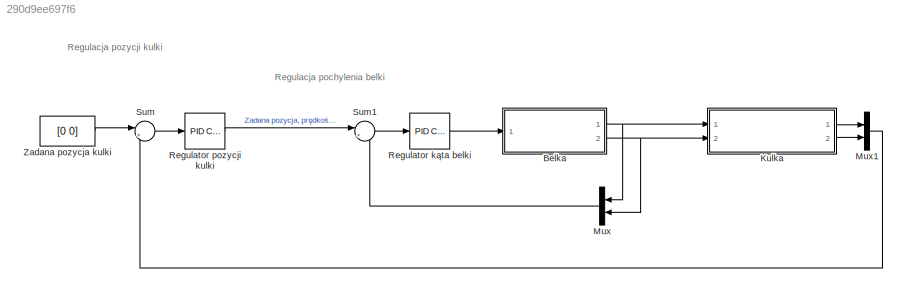
MODEL slx_290d9ee697f6
KIND model
CONFIG AbsTol = auto
CONFIG EnableMultiTasking = off
CONFIG FixedStep = auto
CONFIG MaxStep = auto
CONFIG MinStep = auto
CONFIG RelTol = 1e-3
CONFIG SampleTimeConstraint = Unconstrained
CONFIG Solver = VariableStepAuto
CONFIG SolverName = VariableStepAuto
CONFIG StartTime = 0.0
CONFIG StopTime = 10.0
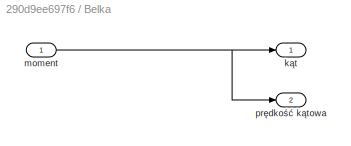
BLOCK [SubSystem] Belka
  Ports = [1, 2]
  RequestExecContextInheritance = off
  Variant = off
BLOCK [Outport] Belka/kąt
  IconDisplay = Port number
BLOCK [Inport] Belka/moment
  IconDisplay = Port number
BLOCK [Outport] Belka/prędkość kątowa
  IconDisplay = Port number
  Port = 2
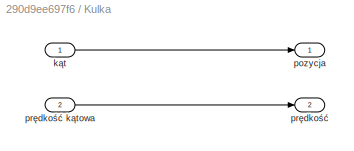
BLOCK [SubSystem] Kulka
  Ports = [2, 2]
  RequestExecContextInheritance = off
  Variant = off
BLOCK [Inport] Kulka/kąt
  IconDisplay = Port number
BLOCK [Outport] Kulka/pozycja
  IconDisplay = Port number
BLOCK [Outport] Kulka/prędkość
  IconDisplay = Port number
  Port = 2
BLOCK [Inport] Kulka/prędkość kątowa
  IconDisplay = Port number
  Port = 2
BLOCK [Mux] Mux
  DisplayOption = bar
  Inputs = 2
  Ports = [2, 1]
BLOCK [Mux] Mux1
  DisplayOption = bar
  Inputs = 2
  Ports = [2, 1]
BLOCK [Reference] Regulator kąta belki  REF=simulink/Continuous/PID Controller
  Ports = [1, 1]
  SourceBlock = simulink/Continuous/PID Controller
  SourceType = PID 1dof
BLOCK [Reference] Regulator pozycji kulki  REF=simulink/Continuous/PID Controller
  Ports = [1, 1]
  SourceBlock = simulink/Continuous/PID Controller
  SourceType = PID 1dof
BLOCK [Sum] Sum
  IconShape = round
  InputSameDT = off
  Inputs = |+-
  OutDataTypeStr = Inherit: Inherit via internal rule
  Ports = [2, 1]
  SaturateOnIntegerOverflow = off
BLOCK [Sum] Sum1
  IconShape = round
  InputSameDT = off
  Inputs = |+-
  OutDataTypeStr = Inherit: Inherit via internal rule
  Ports = [2, 1]
  SaturateOnIntegerOverflow = off
BLOCK [Constant] Zadana pozycja kulki
  Value = [0 0]
ANNOTATION (root): Regulacja pochylenia belki
ANNOTATION (root): Regulacja pozycji kulki
NET Belka/moment:1 -> Belka/kąt:1, Belka/prędkość kątowa:1
NET Belka:1 -> Kulka:1, Mux:1
NET Belka:2 -> Kulka:2, Mux:2
LINE Kulka/kąt:1 -> Kulka/pozycja:1
LINE Kulka/prędkość kątowa:1 -> Kulka/prędkość:1
LINE Kulka:1 -> Mux1:1
LINE Kulka:2 -> Mux1:2
LINE Mux1:1 -> Sum:2
LINE Mux:1 -> Sum1:2
LINE Regulator kąta belki:1 -> Belka:1
LINE Regulator pozycji kulki:1 -> Sum1:1
LINE Sum1:1 -> Regulator kąta belki:1
LINE Sum:1 -> Regulator pozycji kulki:1
LINE Zadana pozycja kulki:1 -> Sum:1
note: NET lines group one-source signal fan-out (src -> all destinations, sorted); 1:1 wires keep LINE
